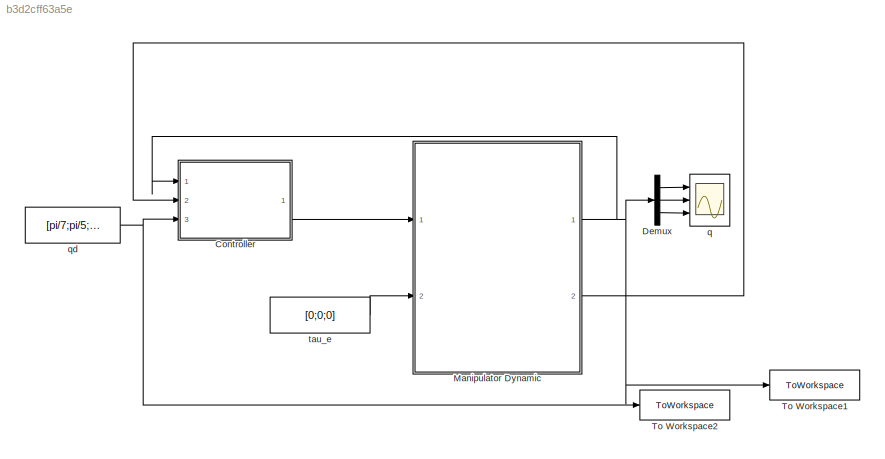
MODEL slx_b3d2cff63a5e
KIND model
CONFIG AbsTol = auto
CONFIG EnableMultiTasking = off
CONFIG FixedStep = dt
CONFIG MaxStep = auto
CONFIG MinStep = auto
CONFIG RelTol = 1e-3
CONFIG SampleTimeConstraint = Unconstrained
CONFIG SolverName = FixedStepAuto
CONFIG StartTime = 0.0
CONFIG StopTime = t_final
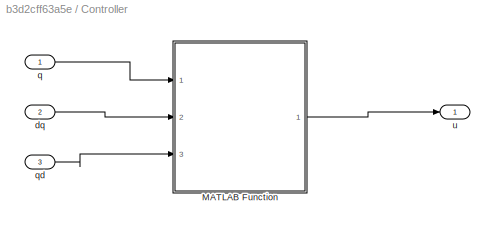
BLOCK [SubSystem] Controller
  Ports = [3, 1]
  RequestExecContextInheritance = off
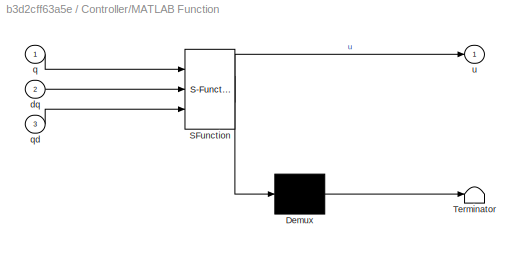
BLOCK [SubSystem] Controller/MATLAB Function
  ErrorFcn = Stateflow.Translate.translate
  PermitHierarchicalResolution = ExplicitOnly
  Ports = [3, 1]
  RequestExecContextInheritance = off
  SFBlockType = MATLAB Function
  TreatAsAtomicUnit = on
BLOCK [Demux] Controller/MATLAB Function/ Demux 
  Outputs = 1
  Ports = [1, 1]
BLOCK [S-Function] Controller/MATLAB Function/ SFunction 
  EnableBusSupport = on
  FunctionName = sf_sfun
  PortCounts = [3 2]
  Ports = [3, 2]
  SFcnIsStateOwnerBlock = off
  SFunctionDeploymentMode = off
  Tag = Stateflow S-Function 1
BLOCK [Terminator] Controller/MATLAB Function/ Terminator 
BLOCK [Inport] Controller/MATLAB Function/dq
  Port = 2
BLOCK [Inport] Controller/MATLAB Function/q
BLOCK [Inport] Controller/MATLAB Function/qd
  Port = 3
BLOCK [Outport] Controller/MATLAB Function/u
BLOCK [Inport] Controller/dq
  Port = 2
BLOCK [Inport] Controller/q
BLOCK [Inport] Controller/qd
  Port = 3
BLOCK [Outport] Controller/u
BLOCK [Demux] Demux
  Outputs = 3
  Ports = [1, 3]
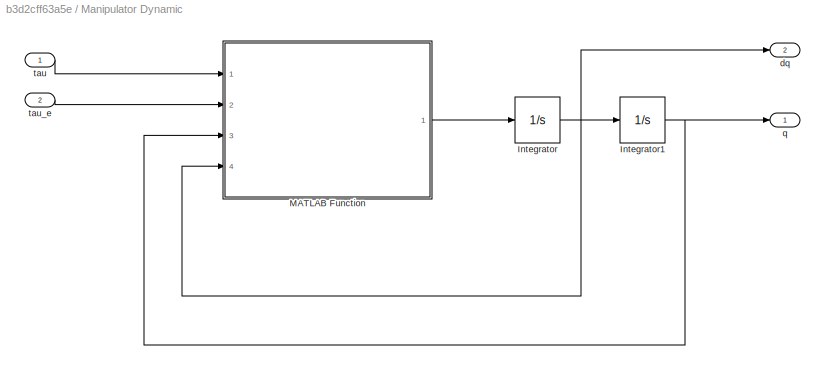
BLOCK [SubSystem] Manipulator Dynamic
  Ports = [2, 2]
  RequestExecContextInheritance = off
BLOCK [Integrator] Manipulator Dynamic/Integrator
  InitialCondition = dq_0
  Ports = [1, 1]
BLOCK [Integrator] Manipulator Dynamic/Integrator1
  InitialCondition = q_0
  Ports = [1, 1]
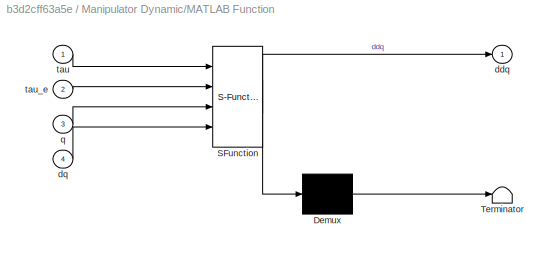
BLOCK [SubSystem] Manipulator Dynamic/MATLAB Function
  ErrorFcn = Stateflow.Translate.translate
  PermitHierarchicalResolution = ExplicitOnly
  Ports = [4, 1]
  RequestExecContextInheritance = off
  SFBlockType = MATLAB Function
  TreatAsAtomicUnit = on
BLOCK [Demux] Manipulator Dynamic/MATLAB Function/ Demux 
  Outputs = 1
  Ports = [1, 1]
BLOCK [S-Function] Manipulator Dynamic/MATLAB Function/ SFunction 
  EnableBusSupport = on
  FunctionName = sf_sfun
  PortCounts = [4 2]
  Ports = [4, 2]
  SFcnIsStateOwnerBlock = off
  SFunctionDeploymentMode = off
  Tag = Stateflow S-Function 2
BLOCK [Terminator] Manipulator Dynamic/MATLAB Function/ Terminator 
BLOCK [Outport] Manipulator Dynamic/MATLAB Function/ddq
BLOCK [Inport] Manipulator Dynamic/MATLAB Function/dq
  Port = 4
BLOCK [Inport] Manipulator Dynamic/MATLAB Function/q
  Port = 3
BLOCK [Inport] Manipulator Dynamic/MATLAB Function/tau
BLOCK [Inport] Manipulator Dynamic/MATLAB Function/tau_e
  Port = 2
BLOCK [Outport] Manipulator Dynamic/dq
  Port = 2
BLOCK [Outport] Manipulator Dynamic/q
BLOCK [Inport] Manipulator Dynamic/tau
BLOCK [Inport] Manipulator Dynamic/tau_e
  Port = 2
BLOCK [ToWorkspace] To Workspace1
  FixptAsFi = on
  MaxDataPoints = inf
  Ports = [1]
  SampleTime = -1
  SaveFormat = Timeseries
  VariableName = confReal
BLOCK [ToWorkspace] To Workspace2
  FixptAsFi = on
  MaxDataPoints = inf
  Ports = [1]
  SampleTime = -1
  SaveFormat = Timeseries
  VariableName = confDes
BLOCK [Scope] q
  Floating = off
  NumInputPorts = 3
  Ports = [3]
  ScopeSpecificationString = Simulink.scopes.TimeScopeBlockCfg('CurrentConfiguration', extmgr.ConfigurationSet(extmgr.Configuration('Core','General UI',true),extmgr.Configuration('Core','Source UI',true),extmgr.Configuration('Sources','WiredSimulink',true),extmgr.Configuration('Visuals','Time Domain',true,'SerializedDisplays',{struct('MinYLimReal','-0.46967','MaxYLimReal','3.1192','YLabelReal','','MinYLimMag','0.00000','MaxYL...<+1418ch>
BLOCK [Constant] qd
  Value = [pi/7;pi/5;pi/3]
BLOCK [Constant] tau_e
  Value = [0;0;0]
LINE Controller/MATLAB Function:1 -> Controller/u:1
LINE Controller/dq:1 -> Controller/MATLAB Function:2
LINE Controller/q:1 -> Controller/MATLAB Function:1
LINE Controller/qd:1 -> Controller/MATLAB Function:3
LINE Controller:1 -> Manipulator Dynamic:1
LINE Demux:1 -> q:1
LINE Demux:2 -> q:2
LINE Demux:3 -> q:3
NET Manipulator Dynamic/Integrator1:1 -> Manipulator Dynamic/MATLAB Function:3, Manipulator Dynamic/q:1
NET Manipulator Dynamic/Integrator:1 -> Manipulator Dynamic/Integrator1:1, Manipulator Dynamic/MATLAB Function:4, Manipulator Dynamic/dq:1
LINE Manipulator Dynamic/MATLAB Function:1 -> Manipulator Dynamic/Integrator:1
LINE Manipulator Dynamic/tau:1 -> Manipulator Dynamic/MATLAB Function:1
LINE Manipulator Dynamic/tau_e:1 -> Manipulator Dynamic/MATLAB Function:2
NET Manipulator Dynamic:1 -> Controller:1, Demux:1, To Workspace1:1
LINE Manipulator Dynamic:2 -> Controller:2
NET qd:1 -> Controller:3, To Workspace2:1
LINE tau_e:1 -> Manipulator Dynamic:2
note: NET lines group one-source signal fan-out (src -> all destinations, sorted); 1:1 wires keep LINE
CHART Controller/MATLAB Function states=1 transitions=1
  STATE_LABEL 'eML_blk_kernel()'
  STATE_LABEL 'SCRIPT:\nfunction u = fcn(q, dq, qd)\n% PD + gravity compensation controller function\n\n%% general physical parameters\n\nl1 = 0.6731;\nl2 = 0.432;\nl3 = 0.434;\nlc2 = 0.216;\nlc3 = 0.164;\nm2 = 15.46;\nm3 = 9.55;\nJ = 0.302;\n\n%% Joint Space variables\n\nq1 = q(1);\nq2 = q(2);\nq3 = q(3);\n\ndq1 = dq(1);\ndq2 = dq(2);\ndq3 = dq(3);\ng = 9.81;\n\n%% Vector of Potential Forces Parameters\n\ng21 = -g * (lc3 * m3 * sin(q2 + q...<+341ch>'
CHART Manipulator Dynamic/MATLAB Function states=1 transitions=1
  STATE_LABEL 'eML_blk_kernel()'
  STATE_LABEL 'SCRIPT:\nfunction ddq = DynamicModel( tau, tau_e, q, dq)\n%%%%%\n% 3-DOF Puma-560 Dynamic Model Function\n% H(q)* ddq + C(q) * dq + G = tau + tau_e\n% q is 3*1 vector of joint variables (radian)\n% H(q) is the inertia matrix\n% C(q) is the matrix of Coriolis and centrifugal forces\n% G(q) is  the vector of potential forces Parameters\n% tau is control torque \n% tau_e is the external torque due to the inter...<+1400ch>'
CHART  states=0 transitions=0
CHART  states=0 transitions=0
